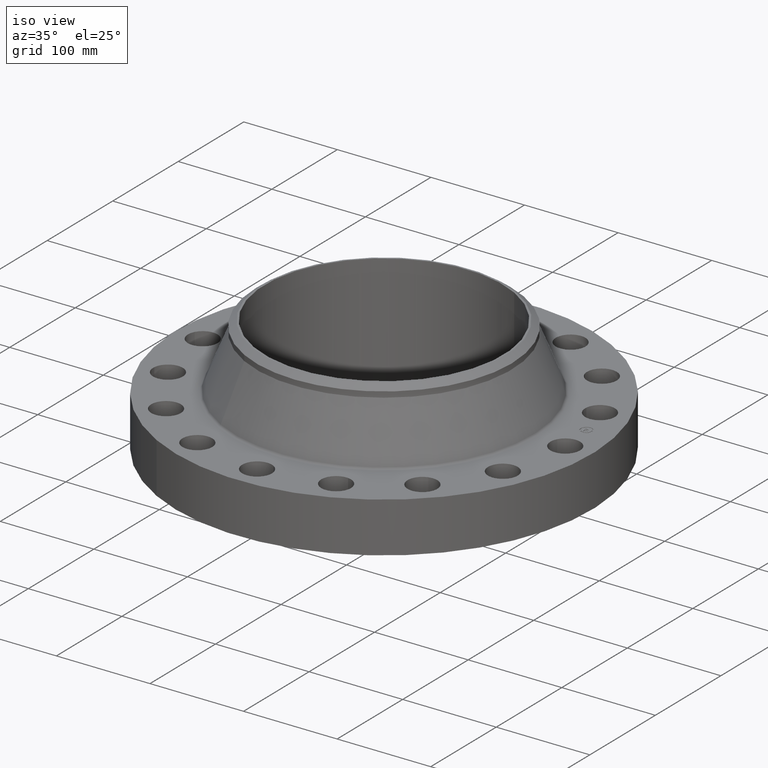
[diagram: clean part render]
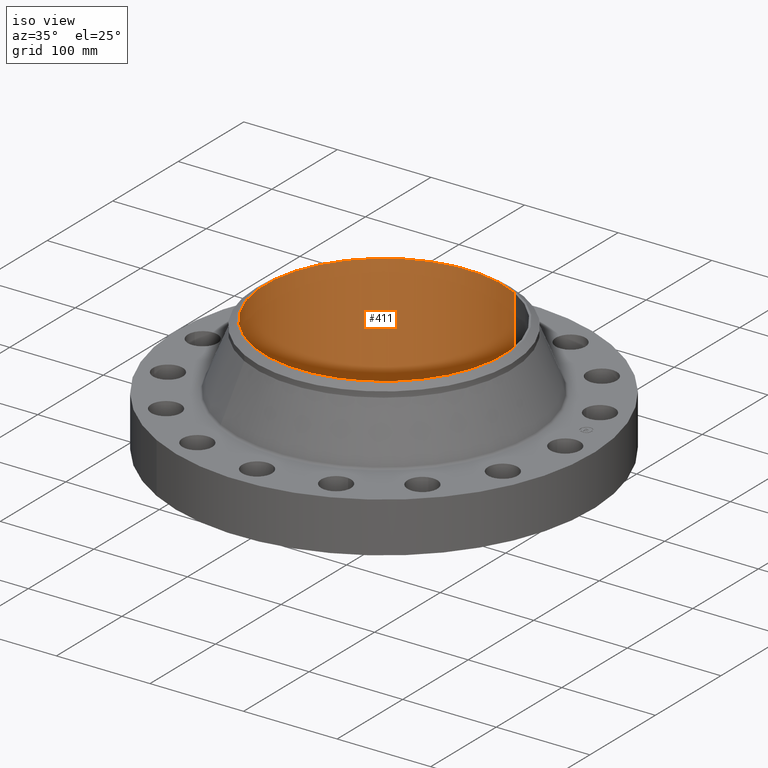
[diagram: same view with one face highlighted and labeled with its STEP entity id]
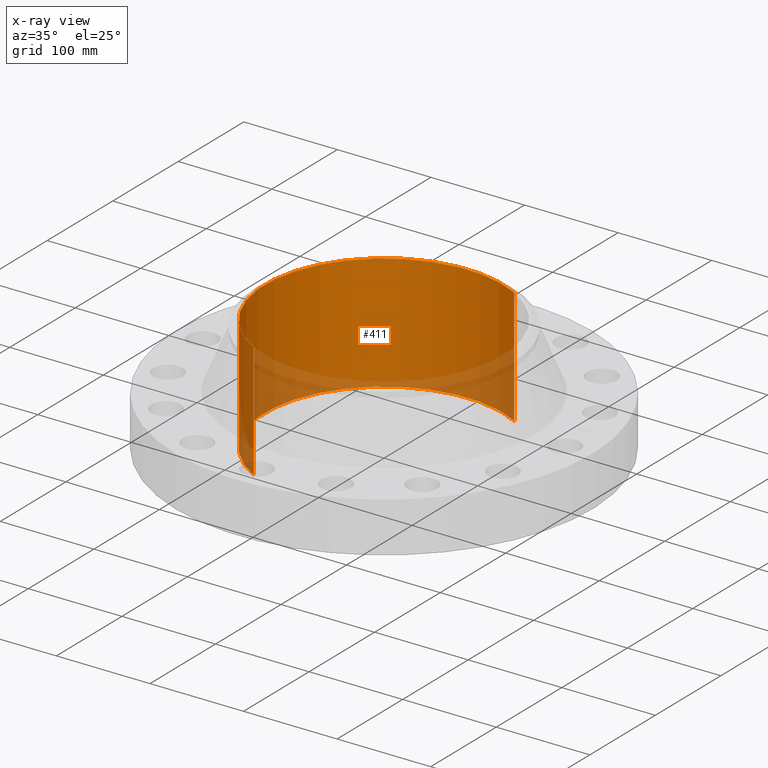
[diagram: x-ray of the same camera — body ghosted, the highlighted face saturated]
A machine part, iso view. The second image highlights one B-rep face of the part: STEP entity #411.
The next image is the same camera in x-ray: the body ghosted, the highlighted face saturated — about 20% of this face is hidden behind the body in this view.
In plain terms, the highlighted cylindrical surface (partial cylindrical patch) has radius 127.254 mm, axis along (0, 0, -1).
Its self-contained STEP definition (entity closure, byte-faithful):
#356=AXIS2_PLACEMENT_3D('Circle Axis2P3D',#354,#355,$) ;
#384=AXIS2_PLACEMENT_3D('Cylinder Axis2P3D',#381,#382,#383) ;
#395=AXIS2_PLACEMENT_3D('Circle Axis2P3D',#393,#394,$) ;
#354=CARTESIAN_POINT('Axis2P3D Location',(0.,0.,4.88000000002)) ;
#358=CARTESIAN_POINT('Vertex',(-2.40192194842,-4.39668863509,4.88000000002)) ;
#360=CARTESIAN_POINT('Vertex',(2.40192194842,4.39668863509,4.88000000002)) ;
#381=CARTESIAN_POINT('Axis2P3D Location',(0.,0.,2.44000000001)) ;
#386=CARTESIAN_POINT('Line Origine',(-2.40192194842,-4.39668863509,2.44000000001)) ;
#390=CARTESIAN_POINT('Vertex',(-2.40192194842,-4.39668863509,-1.9302145184E-014)) ;
#393=CARTESIAN_POINT('Axis2P3D Location',(0.,0.,-2.01413688877E-014)) ;
#397=CARTESIAN_POINT('Vertex',(2.40192194842,4.39668863509,-1.9302145184E-014)) ;
#400=CARTESIAN_POINT('Line Origine',(2.40192194842,4.39668863509,2.44000000001)) ;
#355=DIRECTION('Axis2P3D Direction',(0.,0.,-0.0393700787402)) ;
#382=DIRECTION('Axis2P3D Direction',(0.,0.,-0.0393700787402)) ;
#383=DIRECTION('Axis2P3D XDirection',(0.0188750212049,0.0345504945626,0.)) ;
#387=DIRECTION('Vector Direction',(0.,0.,-0.0393700787402)) ;
#394=DIRECTION('Axis2P3D Direction',(0.,0.,-0.0393700787402)) ;
#401=DIRECTION('Vector Direction',(0.,0.,-0.0393700787402)) ;
#388=VECTOR('Line Direction',#387,0.0393700787402) ;
#402=VECTOR('Line Direction',#401,0.0393700787402) ;
#406=ORIENTED_EDGE('',*,*,#362,.F.) ;
#407=ORIENTED_EDGE('',*,*,#392,.T.) ;
#408=ORIENTED_EDGE('',*,*,#399,.T.) ;
#409=ORIENTED_EDGE('',*,*,#404,.F.) ;
#411=ADVANCED_FACE('PartBody',(#410),#385,.F.) ;
#357=CIRCLE('generated circle',#356,5.01000000002) ;
#396=CIRCLE('generated circle',#395,5.01000000002) ;
#385=CYLINDRICAL_SURFACE('generated cylinder',#384,5.01000000002) ;
#362=EDGE_CURVE('',#359,#361,#357,.T.) ;
#392=EDGE_CURVE('',#359,#391,#389,.T.) ;
#399=EDGE_CURVE('',#391,#398,#396,.T.) ;
#404=EDGE_CURVE('',#361,#398,#403,.T.) ;
#405=EDGE_LOOP('',(#406,#407,#408,#409)) ;
#410=FACE_OUTER_BOUND('',#405,.T.) ;
#389=LINE('Line',#386,#388) ;
#403=LINE('Line',#400,#402) ;
#359=VERTEX_POINT('',#358) ;
#361=VERTEX_POINT('',#360) ;
#391=VERTEX_POINT('',#390) ;
#398=VERTEX_POINT('',#397) ;